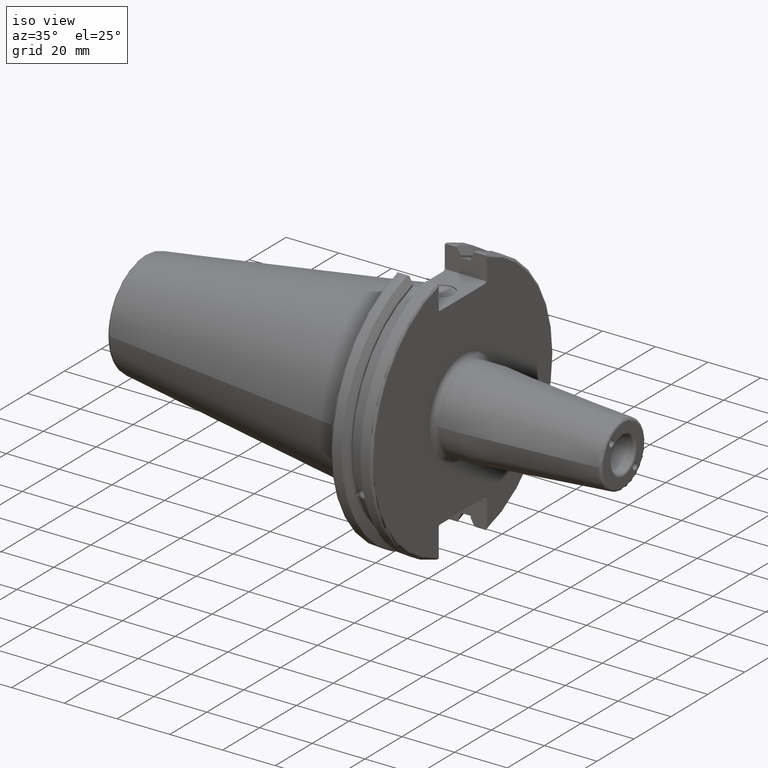
[diagram: clean part render]
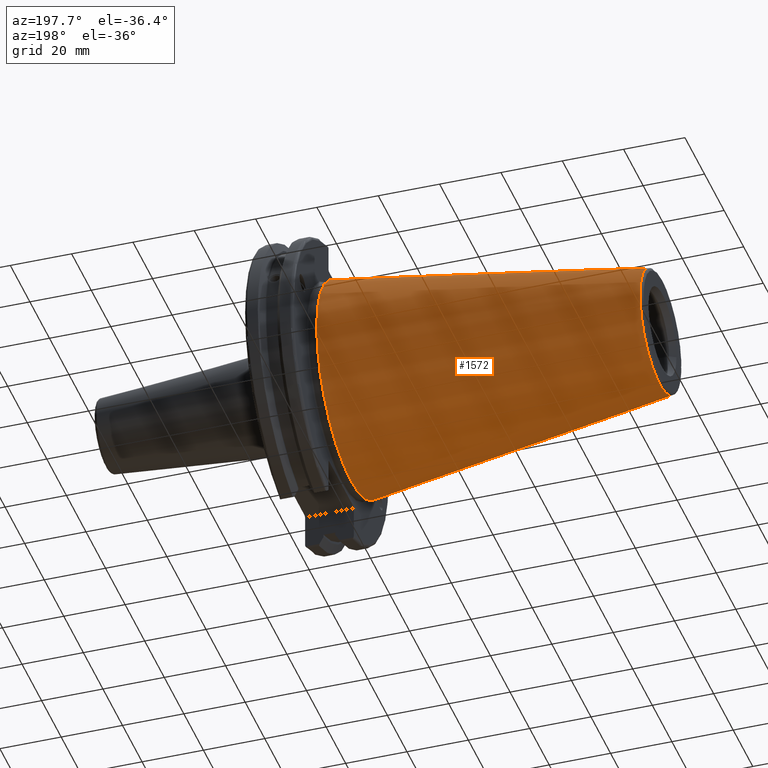
[diagram: tour spotlight — one face highlighted and labeled with its STEP entity id]
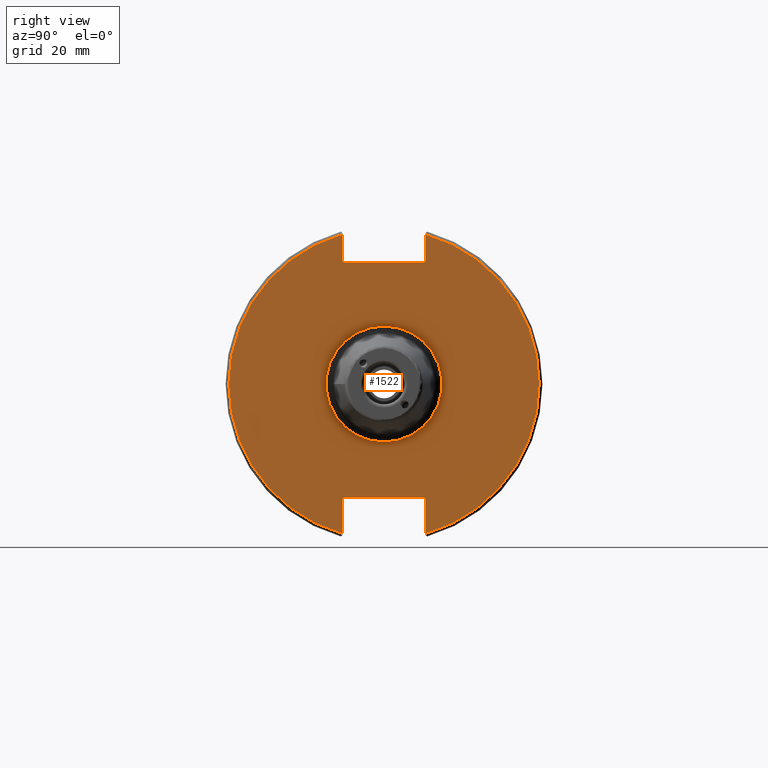
[diagram: tour spotlight — one face highlighted and labeled with its STEP entity id]
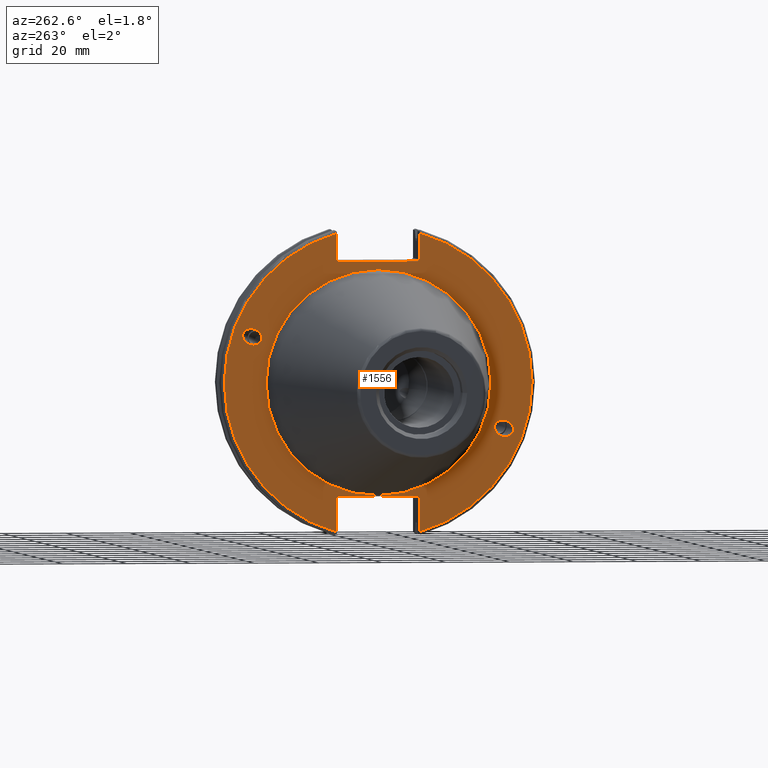
[diagram: tour spotlight — one face highlighted and labeled with its STEP entity id]
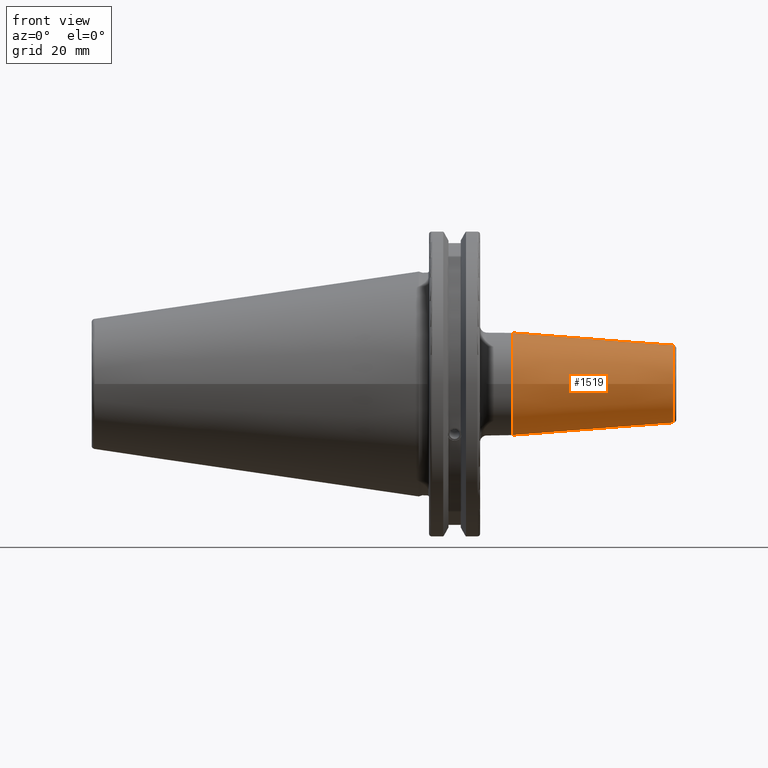
[diagram: tour spotlight — one face highlighted and labeled with its STEP entity id]
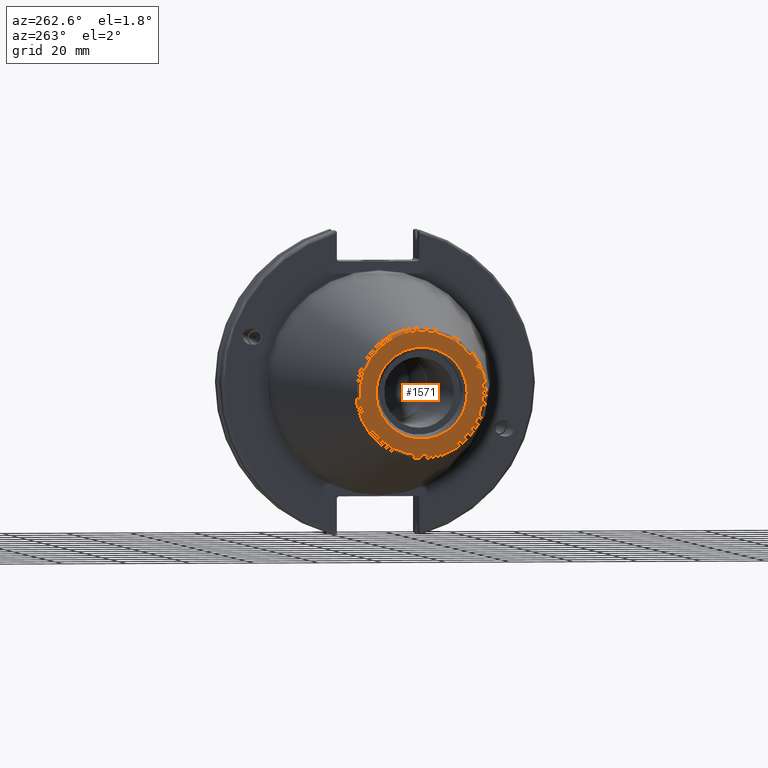
[diagram: tour spotlight — one face highlighted and labeled with its STEP entity id]
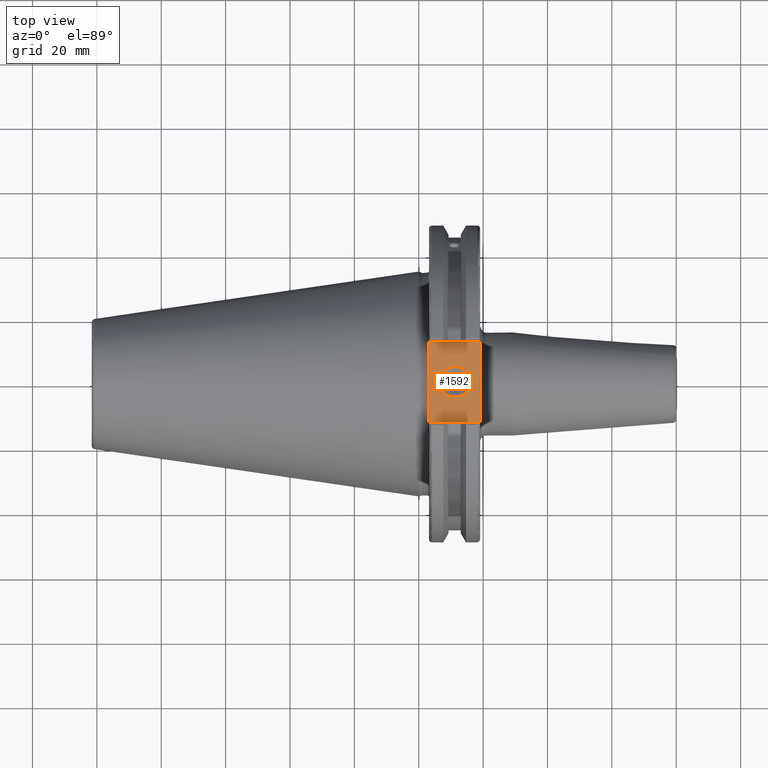
[diagram: tour spotlight — one face highlighted and labeled with its STEP entity id]
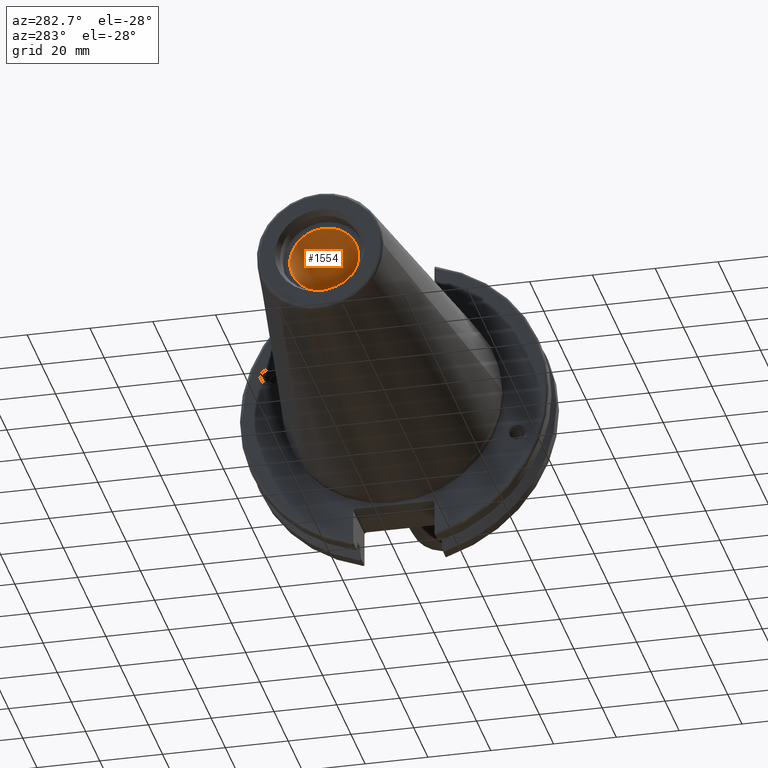
[diagram: tour spotlight — one face highlighted and labeled with its STEP entity id]
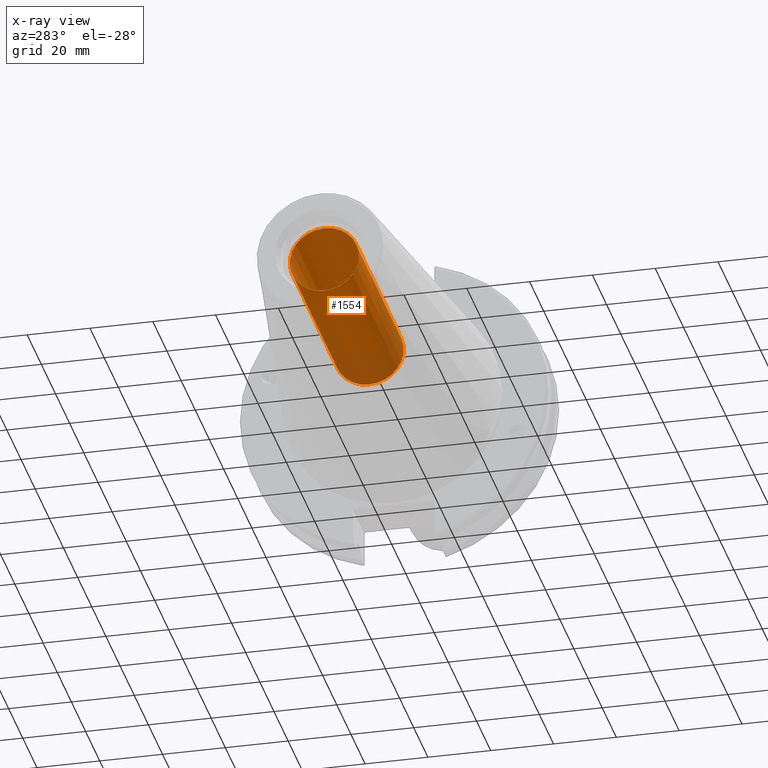
[diagram: x-ray of the same camera — body ghosted, this tour face saturated]
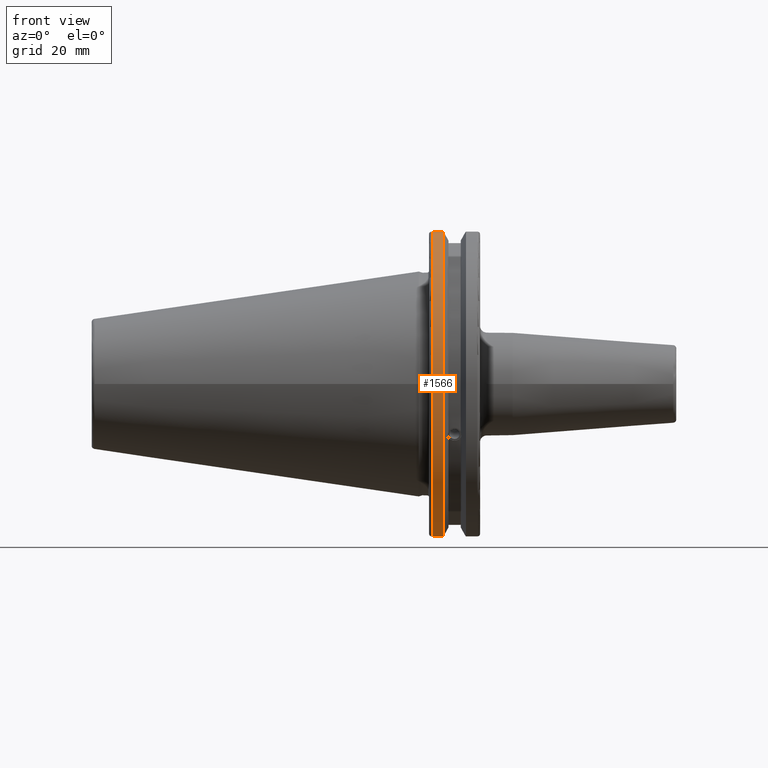
[diagram: tour spotlight — one face highlighted and labeled with its STEP entity id]
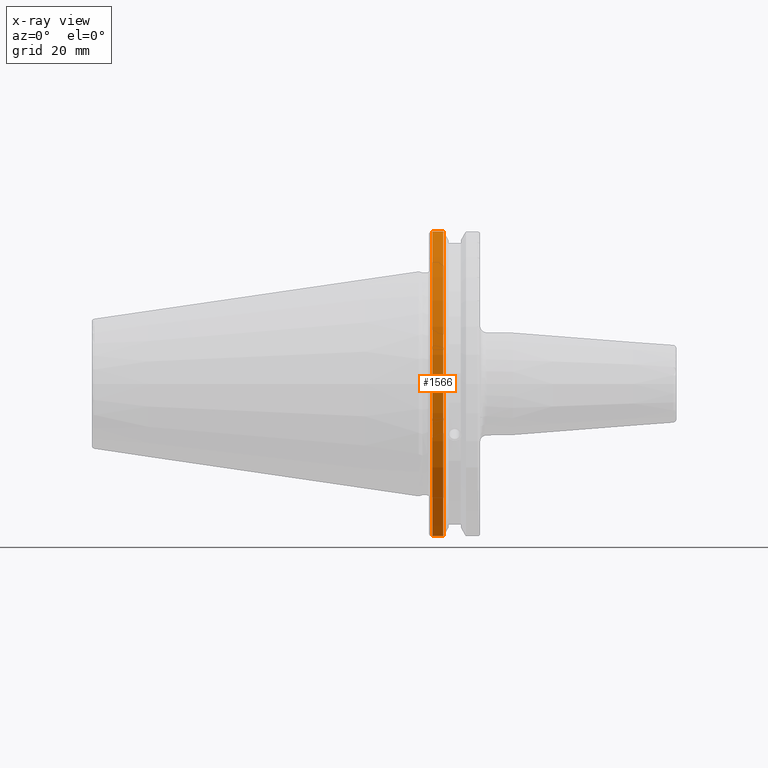
[diagram: x-ray of the same camera — body ghosted, this tour face saturated]
A machine part: a face-by-face anatomy tour. The part has 90 B-rep faces; the first image is the clean iso view, then the 8 largest visible faces are spotlighted one at a time (largest first), each with its STEP entity span.

Face 1 — auxiliary view, entity #1572. In plain terms, the highlighted conical surface has half-angle 8.297 deg.
Definition (entity closure, byte-faithful):
#78=CONICAL_SURFACE('',#1757,27.5166666666666,0.14481249823894);
#213=FACE_OUTER_BOUND('',#321,.T.);
#321=EDGE_LOOP('',(#1350,#1351,#1352,#1353,#1354));
#415=CIRCLE('',#1751,20.233121911427);
#416=CIRCLE('',#1752,20.233121911427);
#420=CIRCLE('',#1758,34.925);
#506=LINE('',#3142,#600);
#600=VECTOR('',#2144,27.5166666666666);
#765=VERTEX_POINT('',#3129);
#766=VERTEX_POINT('',#3130);
#769=VERTEX_POINT('',#3140);
#975=EDGE_CURVE('',#765,#766,#415,.T.);
#976=EDGE_CURVE('',#766,#765,#416,.T.);
#980=EDGE_CURVE('',#769,#769,#420,.T.);
#981=EDGE_CURVE('',#769,#766,#506,.T.);
#1350=ORIENTED_EDGE('',*,*,#980,.F.);
#1351=ORIENTED_EDGE('',*,*,#981,.T.);
#1352=ORIENTED_EDGE('',*,*,#975,.F.);
#1353=ORIENTED_EDGE('',*,*,#976,.F.);
#1354=ORIENTED_EDGE('',*,*,#981,.F.);
#1572=ADVANCED_FACE('',(#213),#78,.T.);
#1751=AXIS2_PLACEMENT_3D('',#3131,#2128,#2129);
#1752=AXIS2_PLACEMENT_3D('',#3132,#2130,#2131);
#1757=AXIS2_PLACEMENT_3D('',#3139,#2140,#2141);
#1758=AXIS2_PLACEMENT_3D('',#3141,#2142,#2143);
#2128=DIRECTION('center_axis',(-1.,0.,0.));
#2129=DIRECTION('ref_axis',(0.,-1.,3.06161699786838E-17));
#2130=DIRECTION('center_axis',(-1.,0.,0.));
#2131=DIRECTION('ref_axis',(0.,-1.,3.06161699786838E-17));
#2140=DIRECTION('center_axis',(1.,0.,0.));
#2141=DIRECTION('ref_axis',(0.,1.,0.));
#2142=DIRECTION('center_axis',(1.,0.,0.));
#2143=DIRECTION('ref_axis',(0.,0.,-1.));
#2144=DIRECTION('',(-0.989532981063281,0.144306893071729,1.76724974695192E-17));
#3129=CARTESIAN_POINT('',(-100.744306893072,-2.47784279855872E-15,20.233121911427));
#3130=CARTESIAN_POINT('',(-100.744306893072,-20.233121911427,-2.47784279855872E-15));
#3131=CARTESIAN_POINT('Origin',(-100.744306893072,0.,-3.09730349819841E-15));
#3132=CARTESIAN_POINT('Origin',(-100.744306893072,0.,-3.09730349819841E-15));
#3139=CARTESIAN_POINT('Origin',(-50.8,0.,0.));
#3140=CARTESIAN_POINT('',(-8.88178419700125E-15,-34.925,-4.27707894602213E-15));
#3141=CARTESIAN_POINT('Origin',(0.,0.,0.));
#3142=CARTESIAN_POINT('',(-50.8,-27.5166666666666,-3.3698197756538E-15));

Face 2 — right view, entity #1522. In plain terms, the highlighted planar face has unit normal (1, 0, 0).
Definition (entity closure, byte-faithful):
#87=FACE_BOUND('',#257,.T.);
#116=PLANE('',#1653);
#163=FACE_OUTER_BOUND('',#256,.T.);
#256=EDGE_LOOP('',(#1058,#1059,#1060,#1061,#1062,#1063,#1064,#1065,#1066,
#1067,#1068,#1069));
#257=EDGE_LOOP('',(#1070));
#366=CIRCLE('',#1650,18.);
#368=CIRCLE('',#1654,48.2125);
#369=CIRCLE('',#1655,48.2125);
#437=LINE('',#2297,#531);
#438=LINE('',#2299,#532);
#439=LINE('',#2301,#533);
#440=LINE('',#2303,#534);
#441=LINE('',#2305,#535);
#442=LINE('',#2309,#536);
#443=LINE('',#2311,#537);
#444=LINE('',#2313,#538);
#445=LINE('',#2315,#539);
#446=LINE('',#2316,#540);
#531=VECTOR('',#1867,10.);
#532=VECTOR('',#1868,10.);
#533=VECTOR('',#1869,10.);
#534=VECTOR('',#1870,10.);
#535=VECTOR('',#1871,10.);
#536=VECTOR('',#1874,10.);
#537=VECTOR('',#1875,10.);
#538=VECTOR('',#1876,10.);
#539=VECTOR('',#1877,10.);
#540=VECTOR('',#1878,10.);
#638=VERTEX_POINT('',#2286);
#639=VERTEX_POINT('',#2293);
#640=VERTEX_POINT('',#2294);
#641=VERTEX_POINT('',#2296);
#642=VERTEX_POINT('',#2298);
#643=VERTEX_POINT('',#2300);
#644=VERTEX_POINT('',#2302);
#645=VERTEX_POINT('',#2304);
#646=VERTEX_POINT('',#2306);
#647=VERTEX_POINT('',#2308);
#648=VERTEX_POINT('',#2310);
#649=VERTEX_POINT('',#2312);
#650=VERTEX_POINT('',#2314);
#800=EDGE_CURVE('',#638,#638,#366,.T.);
#803=EDGE_CURVE('',#639,#640,#368,.T.);
#804=EDGE_CURVE('',#639,#641,#437,.T.);
#805=EDGE_CURVE('',#642,#641,#438,.T.);
#806=EDGE_CURVE('',#642,#643,#439,.T.);
#807=EDGE_CURVE('',#644,#643,#440,.T.);
#808=EDGE_CURVE('',#644,#645,#441,.T.);
#809=EDGE_CURVE('',#646,#645,#369,.T.);
#810=EDGE_CURVE('',#646,#647,#442,.T.);
#811=EDGE_CURVE('',#648,#647,#443,.T.);
#812=EDGE_CURVE('',#648,#649,#444,.T.);
#813=EDGE_CURVE('',#650,#649,#445,.T.);
#814=EDGE_CURVE('',#650,#640,#446,.T.);
#1058=ORIENTED_EDGE('',*,*,#803,.F.);
#1059=ORIENTED_EDGE('',*,*,#804,.T.);
#1060=ORIENTED_EDGE('',*,*,#805,.F.);
#1061=ORIENTED_EDGE('',*,*,#806,.T.);
#1062=ORIENTED_EDGE('',*,*,#807,.F.);
#1063=ORIENTED_EDGE('',*,*,#808,.T.);
#1064=ORIENTED_EDGE('',*,*,#809,.F.);
#1065=ORIENTED_EDGE('',*,*,#810,.T.);
#1066=ORIENTED_EDGE('',*,*,#811,.F.);
#1067=ORIENTED_EDGE('',*,*,#812,.T.);
#1068=ORIENTED_EDGE('',*,*,#813,.F.);
#1069=ORIENTED_EDGE('',*,*,#814,.T.);
#1070=ORIENTED_EDGE('',*,*,#800,.F.);
#1522=ADVANCED_FACE('',(#163,#87),#116,.T.);
#1650=AXIS2_PLACEMENT_3D('',#2288,#1856,#1857);
#1653=AXIS2_PLACEMENT_3D('',#2292,#1863,#1864);
#1654=AXIS2_PLACEMENT_3D('',#2295,#1865,#1866);
#1655=AXIS2_PLACEMENT_3D('',#2307,#1872,#1873);
#1856=DIRECTION('center_axis',(1.,0.,0.));
#1857=DIRECTION('ref_axis',(0.,-1.,-1.22464679914735E-16));
#1863=DIRECTION('center_axis',(1.,0.,0.));
#1864=DIRECTION('ref_axis',(0.,0.,-1.));
#1865=DIRECTION('center_axis',(-1.,0.,0.));
#1866=DIRECTION('ref_axis',(0.,1.,-6.12323399573677E-17));
#1867=DIRECTION('',(0.,0.,-1.));
#1868=DIRECTION('',(0.,0.707106781186549,0.707106781186546));
#1869=DIRECTION('',(0.,-1.,0.));
#1870=DIRECTION('',(0.,0.707106781186549,-0.707106781186546));
#1871=DIRECTION('',(0.,0.,1.));
#1872=DIRECTION('center_axis',(-1.,0.,0.));
#1873=DIRECTION('ref_axis',(0.,-1.,1.60812264967664E-16));
#1874=DIRECTION('',(0.,0.,1.));
#1875=DIRECTION('',(0.,-0.707106781186549,-0.707106781186546));
#1876=DIRECTION('',(0.,1.,0.));
#1877=DIRECTION('',(0.,-0.707106781186549,0.707106781186546));
#1878=DIRECTION('',(0.,0.,-1.));
#2286=CARTESIAN_POINT('',(19.05,-2.20436423846524E-15,-18.));
#2288=CARTESIAN_POINT('Origin',(19.05,0.,0.));
#2292=CARTESIAN_POINT('Origin',(19.05,0.,0.));
#2293=CARTESIAN_POINT('',(19.05,12.95,46.4407434937254));
#2294=CARTESIAN_POINT('',(19.05,12.95,-46.4407434937254));
#2295=CARTESIAN_POINT('Origin',(19.05,0.,0.));
#2296=CARTESIAN_POINT('',(19.05,12.95,38.219));
#2297=CARTESIAN_POINT('',(19.05,12.95,18.8595));
#2298=CARTESIAN_POINT('',(19.05,12.45,37.719));
#2299=CARTESIAN_POINT('',(19.05,0.0327499999999836,25.30175));
#2300=CARTESIAN_POINT('',(19.05,-12.45,37.719));
#2301=CARTESIAN_POINT('',(19.05,0.,37.719));
#2302=CARTESIAN_POINT('',(19.05,-12.95,38.219));
#2303=CARTESIAN_POINT('',(19.05,-0.0327499999999817,25.30175));
#2304=CARTESIAN_POINT('',(19.05,-12.95,46.4407434937254));
#2305=CARTESIAN_POINT('',(19.05,-12.95,18.8595));
#2306=CARTESIAN_POINT('',(19.05,-12.95,-46.4407434937254));
#2307=CARTESIAN_POINT('Origin',(19.05,0.,0.));
#2308=CARTESIAN_POINT('',(19.05,-12.95,-35.806));
#2309=CARTESIAN_POINT('',(19.05,-12.95,-17.653));
#2310=CARTESIAN_POINT('',(19.05,-12.45,-35.306));
#2311=CARTESIAN_POINT('',(19.05,-0.635999999999989,-23.492));
#2312=CARTESIAN_POINT('',(19.05,12.45,-35.306));
#2313=CARTESIAN_POINT('',(19.05,-3.33066907387547E-15,-35.306));
#2314=CARTESIAN_POINT('',(19.05,12.95,-35.806));
#2315=CARTESIAN_POINT('',(19.05,0.635999999999982,-23.492));
#2316=CARTESIAN_POINT('',(19.05,12.95,-17.653));

Face 3 — auxiliary view, entity #1556. In plain terms, the highlighted planar face has unit normal (-1, 0, 0).
Definition (entity closure, byte-faithful):
#98=FACE_BOUND('',#302,.T.);
#99=FACE_BOUND('',#303,.T.);
#100=FACE_BOUND('',#304,.T.);
#127=PLANE('',#1728);
#197=FACE_OUTER_BOUND('',#301,.T.);
#301=EDGE_LOOP('',(#1243,#1244,#1245,#1246,#1247,#1248,#1249,#1250,#1251,
#1252,#1253,#1254));
#302=EDGE_LOOP('',(#1255));
#303=EDGE_LOOP('',(#1256));
#304=EDGE_LOOP('',(#1257));
#405=CIRCLE('',#1726,35.125);
#407=CIRCLE('',#1729,48.2125);
#408=CIRCLE('',#1730,48.2125);
#479=LINE('',#2916,#573);
#480=LINE('',#2918,#574);
#481=LINE('',#2920,#575);
#482=LINE('',#2922,#576);
#483=LINE('',#2924,#577);
#484=LINE('',#2928,#578);
#485=LINE('',#2930,#579);
#486=LINE('',#2932,#580);
#487=LINE('',#2934,#581);
#488=LINE('',#2935,#582);
#573=VECTOR('',#2059,10.);
#574=VECTOR('',#2060,10.);
#575=VECTOR('',#2061,10.);
#576=VECTOR('',#2062,10.);
#577=VECTOR('',#2063,10.);
#578=VECTOR('',#2066,10.);
#579=VECTOR('',#2067,10.);
#580=VECTOR('',#2068,10.);
#581=VECTOR('',#2069,10.);
#582=VECTOR('',#2070,10.);
#622=ELLIPSE('',#1684,3.05193647190364,2.5);
#623=ELLIPSE('',#1718,3.05193647190364,2.5);
#683=VERTEX_POINT('',#2633);
#721=VERTEX_POINT('',#2892);
#726=VERTEX_POINT('',#2907);
#727=VERTEX_POINT('',#2912);
#728=VERTEX_POINT('',#2913);
#729=VERTEX_POINT('',#2915);
#730=VERTEX_POINT('',#2917);
#731=VERTEX_POINT('',#2919);
#732=VERTEX_POINT('',#2921);
#733=VERTEX_POINT('',#2923);
#734=VERTEX_POINT('',#2925);
#735=VERTEX_POINT('',#2927);
#736=VERTEX_POINT('',#2929);
#737=VERTEX_POINT('',#2931);
#738=VERTEX_POINT('',#2933);
#858=EDGE_CURVE('',#683,#683,#622,.T.);
#909=EDGE_CURVE('',#721,#721,#623,.T.);
#916=EDGE_CURVE('',#726,#726,#405,.T.);
#918=EDGE_CURVE('',#727,#728,#407,.T.);
#919=EDGE_CURVE('',#727,#729,#479,.T.);
#920=EDGE_CURVE('',#730,#729,#480,.T.);
#921=EDGE_CURVE('',#730,#731,#481,.T.);
#922=EDGE_CURVE('',#732,#731,#482,.T.);
#923=EDGE_CURVE('',#732,#733,#483,.T.);
#924=EDGE_CURVE('',#734,#733,#408,.T.);
#925=EDGE_CURVE('',#734,#735,#484,.T.);
#926=EDGE_CURVE('',#736,#735,#485,.T.);
#927=EDGE_CURVE('',#736,#737,#486,.T.);
#928=EDGE_CURVE('',#738,#737,#487,.T.);
#929=EDGE_CURVE('',#738,#728,#488,.T.);
#1243=ORIENTED_EDGE('',*,*,#918,.F.);
#1244=ORIENTED_EDGE('',*,*,#919,.T.);
#1245=ORIENTED_EDGE('',*,*,#920,.F.);
#1246=ORIENTED_EDGE('',*,*,#921,.T.);
#1247=ORIENTED_EDGE('',*,*,#922,.F.);
#1248=ORIENTED_EDGE('',*,*,#923,.T.);
#1249=ORIENTED_EDGE('',*,*,#924,.F.);
#1250=ORIENTED_EDGE('',*,*,#925,.T.);
#1251=ORIENTED_EDGE('',*,*,#926,.F.);
#1252=ORIENTED_EDGE('',*,*,#927,.T.);
#1253=ORIENTED_EDGE('',*,*,#928,.F.);
#1254=ORIENTED_EDGE('',*,*,#929,.T.);
#1255=ORIENTED_EDGE('',*,*,#858,.T.);
#1256=ORIENTED_EDGE('',*,*,#909,.T.);
#1257=ORIENTED_EDGE('',*,*,#916,.F.);
#1556=ADVANCED_FACE('',(#197,#98,#99,#100),#127,.T.);
#1684=AXIS2_PLACEMENT_3D('',#2635,#1949,#1950);
#1718=AXIS2_PLACEMENT_3D('',#2894,#2033,#2034);
#1726=AXIS2_PLACEMENT_3D('',#2909,#2051,#2052);
#1728=AXIS2_PLACEMENT_3D('',#2911,#2055,#2056);
#1729=AXIS2_PLACEMENT_3D('',#2914,#2057,#2058);
#1730=AXIS2_PLACEMENT_3D('',#2926,#2064,#2065);
#1949=DIRECTION('center_axis',(1.,0.,0.));
#1950=DIRECTION('ref_axis',(0.,-0.939692620785908,-0.342020143325668));
#2033=DIRECTION('center_axis',(1.,0.,0.));
#2034=DIRECTION('ref_axis',(0.,0.939692620785908,0.342020143325669));
#2051=DIRECTION('center_axis',(-1.,0.,0.));
#2052=DIRECTION('ref_axis',(0.,-1.,1.83697019872103E-16));
#2055=DIRECTION('center_axis',(-1.,0.,0.));
#2056=DIRECTION('ref_axis',(0.,0.,1.));
#2057=DIRECTION('center_axis',(1.,0.,0.));
#2058=DIRECTION('ref_axis',(0.,-1.,1.60812264967664E-16));
#2059=DIRECTION('',(0.,0.,-1.));
#2060=DIRECTION('',(0.,-0.707106781186549,0.707106781186546));
#2061=DIRECTION('',(0.,1.,0.));
#2062=DIRECTION('',(0.,-0.707106781186549,-0.707106781186546));
#2063=DIRECTION('',(0.,0.,1.));
#2064=DIRECTION('center_axis',(1.,0.,0.));
#2065=DIRECTION('ref_axis',(0.,1.,-6.12323399573677E-17));
#2066=DIRECTION('',(0.,0.,1.));
#2067=DIRECTION('',(0.,0.707106781186549,-0.707106781186546));
#2068=DIRECTION('',(0.,-1.,0.));
#2069=DIRECTION('',(0.,0.707106781186549,0.707106781186546));
#2070=DIRECTION('',(0.,0.,-1.));
#2633=CARTESIAN_POINT('',(3.175,-36.5992078912529,-13.3210222701368));
#2635=CARTESIAN_POINT('Origin',(3.175,-39.4670900730082,-14.3648460196781));
#2892=CARTESIAN_POINT('',(3.175,36.5992078912529,13.3210222701368));
#2894=CARTESIAN_POINT('Origin',(3.175,39.4670900730082,14.3648460196781));
#2907=CARTESIAN_POINT('',(3.175,-4.30157188200508E-15,35.125));
#2909=CARTESIAN_POINT('Origin',(3.175,0.,0.));
#2911=CARTESIAN_POINT('Origin',(3.175,49.2125,0.));
#2912=CARTESIAN_POINT('',(3.175,-12.95,46.4407434937254));
#2913=CARTESIAN_POINT('',(3.175,-12.95,-46.4407434937254));
#2914=CARTESIAN_POINT('Origin',(3.175,0.,0.));
#2915=CARTESIAN_POINT('',(3.175,-12.95,38.219));
#2916=CARTESIAN_POINT('',(3.175,-12.95,18.8595));
#2917=CARTESIAN_POINT('',(3.175,-12.45,37.719));
#2918=CARTESIAN_POINT('',(3.175,12.2703750000001,12.998625));
#2919=CARTESIAN_POINT('',(3.175,12.45,37.719));
#2920=CARTESIAN_POINT('',(3.175,24.60625,37.719));
#2921=CARTESIAN_POINT('',(3.175,12.95,38.219));
#2922=CARTESIAN_POINT('',(3.175,12.335875,37.604875));
#2923=CARTESIAN_POINT('',(3.175,12.95,46.4407434937254));
#2924=CARTESIAN_POINT('',(3.175,12.95,18.8595));
#2925=CARTESIAN_POINT('',(3.175,12.95,-46.4407434937254));
#2926=CARTESIAN_POINT('Origin',(3.175,0.,0.));
#2927=CARTESIAN_POINT('',(3.175,12.95,-35.806));
#2928=CARTESIAN_POINT('',(3.175,12.95,-17.653));
#2929=CARTESIAN_POINT('',(3.175,12.45,-35.306));
#2930=CARTESIAN_POINT('',(3.175,12.939125,-35.795125));
#2931=CARTESIAN_POINT('',(3.175,-12.45,-35.306));
#2932=CARTESIAN_POINT('',(3.175,24.60625,-35.306));
#2933=CARTESIAN_POINT('',(3.175,-12.95,-35.806));
#2934=CARTESIAN_POINT('',(3.175,11.6671250000001,-11.188875));
#2935=CARTESIAN_POINT('',(3.175,-12.95,-17.653));

Face 4 — front view, entity #1519. In plain terms, the highlighted conical surface has half-angle 4.5 deg.
Definition (entity closure, byte-faithful):
#71=CONICAL_SURFACE('',#1645,14.,0.0785398163397453);
#160=FACE_OUTER_BOUND('',#253,.T.);
#253=EDGE_LOOP('',(#1043,#1044,#1045,#1046,#1047));
#361=CIRCLE('',#1643,12.0725268420749);
#362=CIRCLE('',#1644,12.0725268420749);
#363=CIRCLE('',#1646,16.);
#435=LINE('',#2280,#529);
#529=VECTOR('',#1847,14.);
#633=VERTEX_POINT('',#2273);
#634=VERTEX_POINT('',#2275);
#635=VERTEX_POINT('',#2279);
#794=EDGE_CURVE('',#633,#634,#361,.T.);
#795=EDGE_CURVE('',#634,#633,#362,.T.);
#796=EDGE_CURVE('',#634,#635,#435,.T.);
#797=EDGE_CURVE('',#635,#635,#363,.T.);
#1043=ORIENTED_EDGE('',*,*,#795,.F.);
#1044=ORIENTED_EDGE('',*,*,#796,.T.);
#1045=ORIENTED_EDGE('',*,*,#797,.T.);
#1046=ORIENTED_EDGE('',*,*,#796,.F.);
#1047=ORIENTED_EDGE('',*,*,#794,.F.);
#1519=ADVANCED_FACE('',(#160),#71,.T.);
#1643=AXIS2_PLACEMENT_3D('',#2276,#1841,#1842);
#1644=AXIS2_PLACEMENT_3D('',#2277,#1843,#1844);
#1645=AXIS2_PLACEMENT_3D('',#2278,#1845,#1846);
#1646=AXIS2_PLACEMENT_3D('',#2281,#1848,#1849);
#1841=DIRECTION('center_axis',(1.,0.,0.));
#1842=DIRECTION('ref_axis',(0.,-1.,3.06161699786838E-17));
#1843=DIRECTION('center_axis',(1.,0.,0.));
#1844=DIRECTION('ref_axis',(0.,-1.,3.06161699786838E-17));
#1845=DIRECTION('center_axis',(-1.,0.,0.));
#1846=DIRECTION('ref_axis',(0.,1.,0.));
#1847=DIRECTION('',(-0.996917333733128,-0.0784590957278454,-9.60846804471017E-18));
#1848=DIRECTION('center_axis',(1.,0.,0.));
#1849=DIRECTION('ref_axis',(0.,0.,-1.));
#2273=CARTESIAN_POINT('',(79.0784590957279,-1.47845813547676E-15,12.0725268420749));
#2275=CARTESIAN_POINT('',(79.0784590957279,-12.0725268420749,-1.47845813547676E-15));
#2276=CARTESIAN_POINT('Origin',(79.0784590957279,0.,-1.84807266934594E-15));
#2277=CARTESIAN_POINT('Origin',(79.0784590957279,0.,-1.84807266934594E-15));
#2278=CARTESIAN_POINT('Origin',(54.5875905276507,0.,0.));
#2279=CARTESIAN_POINT('',(29.1751810553014,-16.,-1.95943487863577E-15));
#2280=CARTESIAN_POINT('',(54.5875905276507,-14.,-1.71450551880629E-15));
#2281=CARTESIAN_POINT('Origin',(29.1751810553014,0.,0.));

Face 5 — auxiliary view, entity #1571. In plain terms, the highlighted planar face has unit normal (-1, 0, 0).
Definition (entity closure, byte-faithful):
#101=FACE_BOUND('',#320,.T.);
#135=PLANE('',#1755);
#212=FACE_OUTER_BOUND('',#319,.T.);
#319=EDGE_LOOP('',(#1348));
#320=EDGE_LOOP('',(#1349));
#418=CIRCLE('',#1754,19.2435889303637);
#419=CIRCLE('',#1756,14.2875);
#767=VERTEX_POINT('',#3133);
#768=VERTEX_POINT('',#3137);
#978=EDGE_CURVE('',#767,#767,#418,.T.);
#979=EDGE_CURVE('',#768,#768,#419,.T.);
#1348=ORIENTED_EDGE('',*,*,#978,.F.);
#1349=ORIENTED_EDGE('',*,*,#979,.T.);
#1571=ADVANCED_FACE('',(#212,#101),#135,.T.);
#1754=AXIS2_PLACEMENT_3D('',#3135,#2134,#2135);
#1755=AXIS2_PLACEMENT_3D('',#3136,#2136,#2137);
#1756=AXIS2_PLACEMENT_3D('',#3138,#2138,#2139);
#2134=DIRECTION('center_axis',(1.,0.,0.));
#2135=DIRECTION('ref_axis',(0.,-1.,1.83697019872103E-16));
#2136=DIRECTION('center_axis',(-1.,0.,0.));
#2137=DIRECTION('ref_axis',(0.,0.,1.));
#2138=DIRECTION('center_axis',(1.,0.,0.));
#2139=DIRECTION('ref_axis',(0.,0.,-1.));
#3133=CARTESIAN_POINT('',(-101.6,-2.35665995876774E-15,19.2435889303637));
#3135=CARTESIAN_POINT('Origin',(-101.6,0.,0.));
#3136=CARTESIAN_POINT('Origin',(-101.6,20.1083333333333,0.));
#3137=CARTESIAN_POINT('',(-101.6,-14.2875,-1.74971411428178E-15));
#3138=CARTESIAN_POINT('Origin',(-101.6,0.,0.));

Face 6 — top view, entity #1592. In plain terms, the highlighted planar face has unit normal (0, 0, 1).
Definition (entity closure, byte-faithful):
#102=FACE_BOUND('',#342,.T.);
#148=PLANE('',#1784);
#233=FACE_OUTER_BOUND('',#341,.T.);
#341=EDGE_LOOP('',(#1443,#1444,#1445,#1446));
#342=EDGE_LOOP('',(#1447));
#423=CIRCLE('',#1776,4.7625);
#439=LINE('',#2301,#533);
#481=LINE('',#2920,#575);
#509=LINE('',#3149,#603);
#511=LINE('',#3152,#605);
#533=VECTOR('',#1869,10.);
#575=VECTOR('',#2061,10.);
#603=VECTOR('',#2155,10.);
#605=VECTOR('',#2159,10.);
#642=VERTEX_POINT('',#2298);
#643=VERTEX_POINT('',#2300);
#730=VERTEX_POINT('',#2917);
#731=VERTEX_POINT('',#2919);
#777=VERTEX_POINT('',#3188);
#806=EDGE_CURVE('',#642,#643,#439,.T.);
#921=EDGE_CURVE('',#730,#731,#481,.T.);
#984=EDGE_CURVE('',#643,#730,#509,.T.);
#986=EDGE_CURVE('',#731,#642,#511,.T.);
#1001=EDGE_CURVE('',#777,#777,#423,.T.);
#1443=ORIENTED_EDGE('',*,*,#984,.F.);
#1444=ORIENTED_EDGE('',*,*,#806,.F.);
#1445=ORIENTED_EDGE('',*,*,#986,.F.);
#1446=ORIENTED_EDGE('',*,*,#921,.F.);
#1447=ORIENTED_EDGE('',*,*,#1001,.T.);
#1592=ADVANCED_FACE('',(#233,#102),#148,.T.);
#1776=AXIS2_PLACEMENT_3D('',#3189,#2194,#2195);
#1784=AXIS2_PLACEMENT_3D('',#3198,#2211,#2212);
#1869=DIRECTION('',(0.,-1.,0.));
#2061=DIRECTION('',(0.,1.,0.));
#2155=DIRECTION('',(-1.,1.31581988103722E-16,0.));
#2159=DIRECTION('',(1.,0.,0.));
#2194=DIRECTION('center_axis',(0.,0.,-1.));
#2195=DIRECTION('ref_axis',(1.,0.,0.));
#2211=DIRECTION('center_axis',(0.,0.,1.));
#2212=DIRECTION('ref_axis',(1.,0.,0.));
#2298=CARTESIAN_POINT('',(19.05,12.45,37.719));
#2300=CARTESIAN_POINT('',(19.05,-12.45,37.719));
#2301=CARTESIAN_POINT('',(19.05,0.,37.719));
#2917=CARTESIAN_POINT('',(3.175,-12.45,37.719));
#2919=CARTESIAN_POINT('',(3.175,12.45,37.719));
#2920=CARTESIAN_POINT('',(3.175,24.60625,37.719));
#3149=CARTESIAN_POINT('',(10.63125,-12.45,37.719));
#3152=CARTESIAN_POINT('',(19.06875,12.45,37.719));
#3188=CARTESIAN_POINT('',(6.3716,-5.83238038093927E-16,37.719));
#3189=CARTESIAN_POINT('Origin',(11.1341,0.,37.719));
#3198=CARTESIAN_POINT('Origin',(18.0875,0.,37.719));

Face 7 — auxiliary view, entity #1554. An x-ray twin of the same camera follows (body ghosted, this face saturated) — the face is partly hidden behind the body. In plain terms, the highlighted cylindrical surface (bore or boss wall) has radius 10.9855 mm, axis along (-1, 0, 0).
Definition (entity closure, byte-faithful):
#195=FACE_OUTER_BOUND('',#299,.T.);
#299=EDGE_LOOP('',(#1234,#1235,#1236,#1237));
#401=CIRCLE('',#1720,10.9855);
#402=CIRCLE('',#1722,10.9855);
#478=LINE('',#2902,#572);
#572=VECTOR('',#2044,10.9855);
#722=VERTEX_POINT('',#2896);
#723=VERTEX_POINT('',#2900);
#910=EDGE_CURVE('',#722,#722,#401,.T.);
#912=EDGE_CURVE('',#723,#723,#402,.T.);
#913=EDGE_CURVE('',#723,#722,#478,.T.);
#1234=ORIENTED_EDGE('',*,*,#912,.F.);
#1235=ORIENTED_EDGE('',*,*,#913,.T.);
#1236=ORIENTED_EDGE('',*,*,#910,.F.);
#1237=ORIENTED_EDGE('',*,*,#913,.F.);
#1501=CYLINDRICAL_SURFACE('',#1721,10.9855);
#1554=ADVANCED_FACE('',(#195),#1501,.F.);
#1720=AXIS2_PLACEMENT_3D('',#2897,#2037,#2038);
#1721=AXIS2_PLACEMENT_3D('',#2899,#2040,#2041);
#1722=AXIS2_PLACEMENT_3D('',#2901,#2042,#2043);
#2037=DIRECTION('center_axis',(-1.,0.,0.));
#2038=DIRECTION('ref_axis',(0.,0.,1.));
#2040=DIRECTION('center_axis',(-1.,0.,0.));
#2041=DIRECTION('ref_axis',(0.,0.,1.));
#2042=DIRECTION('center_axis',(1.,0.,0.));
#2043=DIRECTION('ref_axis',(0.,0.,1.));
#2044=DIRECTION('',(1.,0.,0.));
#2896=CARTESIAN_POINT('',(-31.6,-1.34533574120333E-15,-10.9855));
#2897=CARTESIAN_POINT('Origin',(-31.6,0.,0.));
#2899=CARTESIAN_POINT('Origin',(-66.6,0.,0.));
#2900=CARTESIAN_POINT('',(-95.25,1.34533574120333E-15,-10.9855));
#2901=CARTESIAN_POINT('Origin',(-95.25,0.,0.));
#2902=CARTESIAN_POINT('',(-66.6,-1.34533574120333E-15,-10.9855));

Face 8 — front view, entity #1566. An x-ray twin of the same camera follows (body ghosted, this face saturated) — the face is partly hidden behind the body. In plain terms, the highlighted cylindrical surface (partial cylindrical patch) has radius 49.2125 mm, axis along (1, 0, 0).
Definition (entity closure, byte-faithful):
#207=FACE_OUTER_BOUND('',#314,.T.);
#314=EDGE_LOOP('',(#1325,#1326,#1327,#1328));
#412=CIRCLE('',#1742,49.2125);
#413=CIRCLE('',#1745,49.2125);
#503=LINE('',#3087,#597);
#504=LINE('',#3093,#598);
#597=VECTOR('',#2111,10.);
#598=VECTOR('',#2114,10.);
#758=VERTEX_POINT('',#3066);
#759=VERTEX_POINT('',#3075);
#760=VERTEX_POINT('',#3086);
#761=VERTEX_POINT('',#3092);
#963=EDGE_CURVE('',#758,#759,#412,.T.);
#965=EDGE_CURVE('',#759,#760,#503,.T.);
#967=EDGE_CURVE('',#761,#758,#504,.T.);
#968=EDGE_CURVE('',#760,#761,#413,.T.);
#1325=ORIENTED_EDGE('',*,*,#963,.F.);
#1326=ORIENTED_EDGE('',*,*,#967,.F.);
#1327=ORIENTED_EDGE('',*,*,#968,.F.);
#1328=ORIENTED_EDGE('',*,*,#965,.F.);
#1503=CYLINDRICAL_SURFACE('',#1744,49.2125);
#1566=ADVANCED_FACE('',(#207),#1503,.T.);
#1742=AXIS2_PLACEMENT_3D('',#3076,#2107,#2108);
#1744=AXIS2_PLACEMENT_3D('',#3091,#2112,#2113);
#1745=AXIS2_PLACEMENT_3D('',#3094,#2115,#2116);
#2107=DIRECTION('center_axis',(-1.,0.,0.));
#2108=DIRECTION('ref_axis',(0.,-1.,1.60812264967664E-16));
#2111=DIRECTION('',(1.,0.,0.));
#2112=DIRECTION('center_axis',(1.,0.,0.));
#2113=DIRECTION('ref_axis',(0.,-1.,1.22464679914735E-16));
#2114=DIRECTION('',(-1.,0.,0.));
#2115=DIRECTION('center_axis',(1.,0.,0.));
#2116=DIRECTION('ref_axis',(0.,0.,-1.));
#3066=CARTESIAN_POINT('',(4.175,-13.4317035994433,-47.3440544806494));
#3075=CARTESIAN_POINT('',(4.175,-13.4317035994433,47.3440544806494));
#3076=CARTESIAN_POINT('Origin',(4.175,0.,0.));
#3086=CARTESIAN_POINT('',(7.60799096595127,-13.4317035994433,47.3440544806494));
#3087=CARTESIAN_POINT('',(5.39149548297563,-13.4317035994433,47.3440544806494));
#3091=CARTESIAN_POINT('Origin',(5.39149548297563,0.,0.));
#3092=CARTESIAN_POINT('',(7.60799096595127,-13.4317035994433,-47.3440544806494));
#3093=CARTESIAN_POINT('',(5.39149548297563,-13.4317035994433,-47.3440544806494));
#3094=CARTESIAN_POINT('Origin',(7.60799096595127,0.,0.));